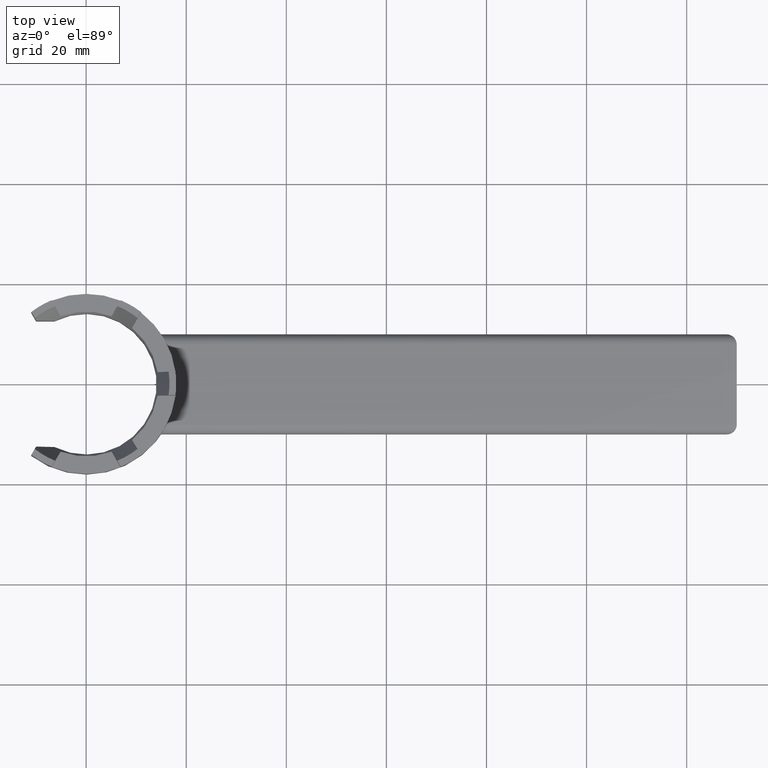
[diagram: clean part render]
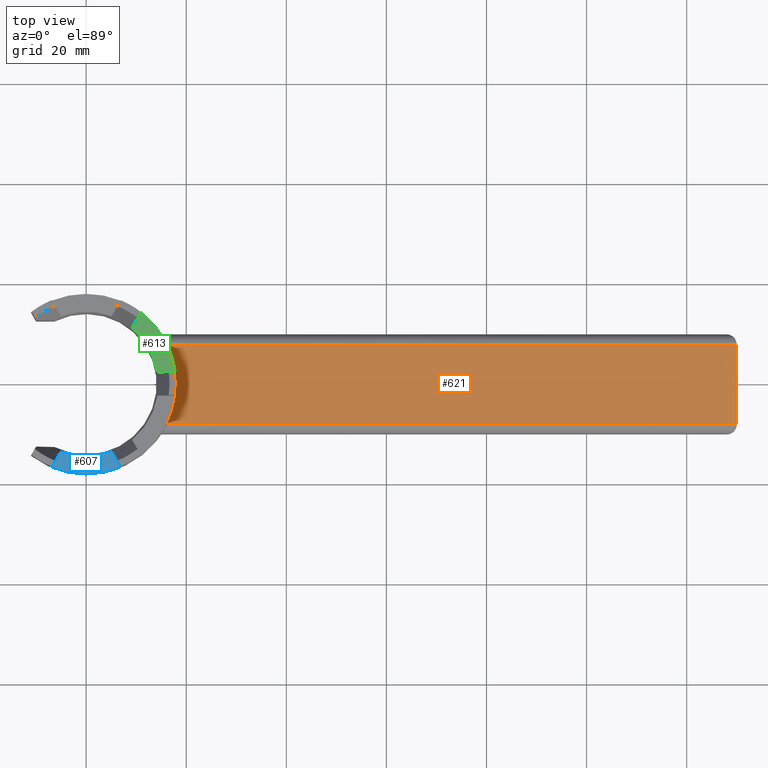
[diagram: same view with three faces highlighted in distinct colors, each labeled with its STEP entity id]
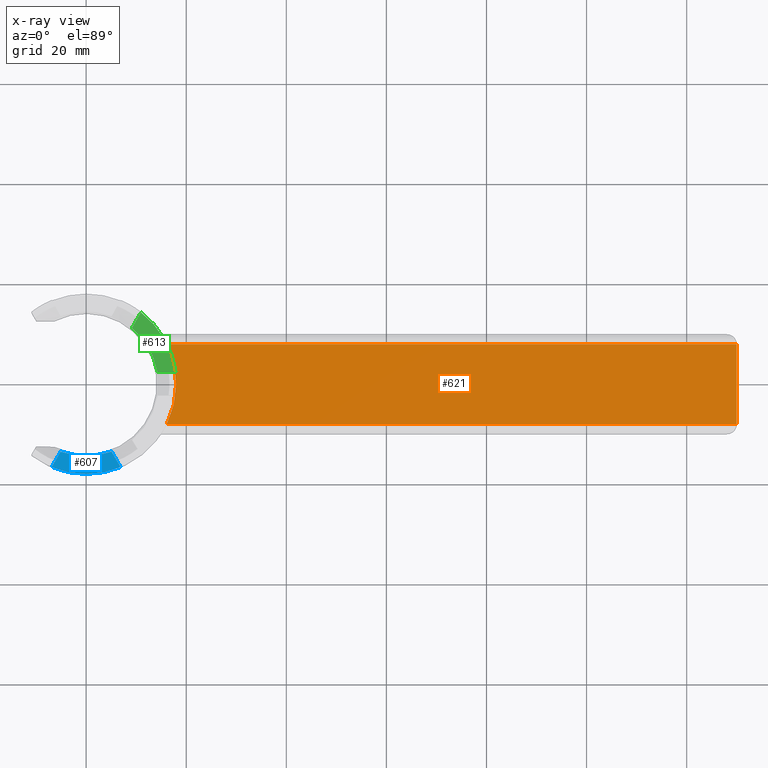
[diagram: x-ray of the same camera — body ghosted, the three highlighted faces saturated]
A machine part, top view with three faces highlighted in distinct colors.
The next image is the same camera in x-ray (body ghosted, the three faces saturated) — at least one of them is partly hidden behind the body in this view.
Their STEP definitions:

[orange] entity #621 — the highlighted planar face has unit normal (0, 0, 1).
#88=PLANE('',#1117);
#114=CIRCLE('',#1118,18.);
#141=VERTEX_POINT('',#784);
#142=VERTEX_POINT('',#786);
#165=VERTEX_POINT('',#908);
#192=VERTEX_POINT('',#1046);
#195=VECTOR('',#647,1.);
#196=VECTOR('',#671,1.);
#233=VECTOR('',#742,1.);
#239=LINE('',#785,#195);
#240=LINE('',#907,#196);
#277=LINE('',#1047,#233);
#285=EDGE_CURVE('',#142,#141,#239,.T.);
#309=EDGE_CURVE('',#165,#141,#240,.T.);
#355=EDGE_CURVE('',#165,#192,#277,.F.);
#358=EDGE_CURVE('',#142,#192,#114,.T.);
#479=ORIENTED_EDGE('',*,*,#309,.F.);
#480=ORIENTED_EDGE('',*,*,#355,.T.);
#481=ORIENTED_EDGE('',*,*,#358,.F.);
#482=ORIENTED_EDGE('',*,*,#285,.T.);
#559=EDGE_LOOP('',(#479,#480,#481,#482));
#590=FACE_BOUND('',#559,.T.);
#621=ADVANCED_FACE('',(#590),#88,.T.);
#647=DIRECTION('',(1.,1.20641408255495E-16,0.));
#671=DIRECTION('',(0.,-1.,0.));
#742=DIRECTION('',(1.,-1.20641408255495E-16,0.));
#752=DIRECTION('',(0.,0.,1.));
#753=DIRECTION('',(0.,0.,1.));
#754=DIRECTION('',(-18.,0.,0.));
#784=CARTESIAN_POINT('',(130.,-8.,4.));
#785=CARTESIAN_POINT('',(130.,-8.,4.));
#786=CARTESIAN_POINT('',(16.1245154965971,-8.00000000000002,4.));
#907=CARTESIAN_POINT('',(130.,5.,4.));
#908=CARTESIAN_POINT('',(130.,8.,4.));
#1046=CARTESIAN_POINT('',(16.1245154965971,8.,4.));
#1047=CARTESIAN_POINT('',(1.37074405272211E-15,8.,4.));
#1053=CARTESIAN_POINT('',(14.9666295470958,0.,4.));
#1054=CARTESIAN_POINT('',(0.,0.,4.));
#1117=AXIS2_PLACEMENT_3D('',#1053,#752,$);
#1118=AXIS2_PLACEMENT_3D('',#1054,#753,#754);

[blue] entity #607 — the highlighted planar face has unit normal (0, 0, 1).
#78=PLANE('',#1097);
#98=CIRCLE('',#1079,14.4661785944028);
#110=CIRCLE('',#1098,18.);
#149=VERTEX_POINT('',#858);
#150=VERTEX_POINT('',#860);
#180=VERTEX_POINT('',#952);
#181=VERTEX_POINT('',#954);
#215=VECTOR('',#704,0.999999999999999);
#216=VECTOR('',#707,1.);
#259=LINE('',#951,#215);
#260=LINE('',#955,#216);
#293=EDGE_CURVE('',#149,#150,#98,.F.);
#332=EDGE_CURVE('',#149,#180,#259,.T.);
#333=EDGE_CURVE('',#180,#181,#110,.T.);
#334=EDGE_CURVE('',#181,#150,#260,.T.);
#424=ORIENTED_EDGE('',*,*,#332,.T.);
#425=ORIENTED_EDGE('',*,*,#333,.T.);
#426=ORIENTED_EDGE('',*,*,#334,.T.);
#427=ORIENTED_EDGE('',*,*,#293,.F.);
#545=EDGE_LOOP('',(#424,#425,#426,#427));
#576=FACE_BOUND('',#545,.T.);
#607=ADVANCED_FACE('',(#576),#78,.T.);
#654=DIRECTION('',(0.,0.,-1.));
#655=DIRECTION('',(14.4661785944028,0.,0.));
#703=DIRECTION('',(0.,0.,1.));
#704=DIRECTION('',(-0.5,-0.866025403784438,0.));
#705=DIRECTION('',(0.,0.,1.));
#706=DIRECTION('',(-18.,0.,0.));
#707=DIRECTION('',(-0.5,0.866025403784439,0.));
#858=CARTESIAN_POINT('',(-5.10185338651488,-13.5366692782111,8.));
#859=CARTESIAN_POINT('',(0.,0.,8.));
#860=CARTESIAN_POINT('',(5.10185338651486,-13.5366692782111,8.00000000000001));
#950=CARTESIAN_POINT('',(0.,0.,8.));
#951=CARTESIAN_POINT('',(1.01757984944672,-2.9375,8.));
#952=CARTESIAN_POINT('',(-6.8878092576815,-16.6300355871476,8.));
#953=CARTESIAN_POINT('',(0.,0.,8.));
#954=CARTESIAN_POINT('',(6.88780925768151,-16.6300355871476,8.));
#955=CARTESIAN_POINT('',(-1.01757984944671,-2.9375,8.));
#1079=AXIS2_PLACEMENT_3D('',#859,#654,#655);
#1097=AXIS2_PLACEMENT_3D('',#950,#703,$);
#1098=AXIS2_PLACEMENT_3D('',#953,#705,#706);

[green] entity #613 — the highlighted planar face has unit normal (0, 0, 1).
#84=PLANE('',#1105);
#102=CIRCLE('',#1083,14.4661785944028);
#112=CIRCLE('',#1106,18.);
#157=VERTEX_POINT('',#882);
#158=VERTEX_POINT('',#884);
#187=VERTEX_POINT('',#978);
#188=VERTEX_POINT('',#980);
#226=VECTOR('',#725,1.);
#227=VECTOR('',#728,1.);
#270=LINE('',#977,#226);
#271=LINE('',#981,#227);
#301=EDGE_CURVE('',#157,#158,#102,.F.);
#345=EDGE_CURVE('',#157,#187,#270,.T.);
#346=EDGE_CURVE('',#187,#188,#112,.T.);
#347=EDGE_CURVE('',#188,#158,#271,.T.);
#448=ORIENTED_EDGE('',*,*,#345,.T.);
#449=ORIENTED_EDGE('',*,*,#346,.T.);
#450=ORIENTED_EDGE('',*,*,#347,.T.);
#451=ORIENTED_EDGE('',*,*,#301,.F.);
#551=EDGE_LOOP('',(#448,#449,#450,#451));
#582=FACE_BOUND('',#551,.T.);
#613=ADVANCED_FACE('',(#582),#84,.T.);
#662=DIRECTION('',(0.,0.,-1.));
#663=DIRECTION('',(14.4661785944028,0.,0.));
#724=DIRECTION('',(0.,0.,1.));
#725=DIRECTION('',(1.,-2.04631512212578E-15,0.));
#726=DIRECTION('',(0.,0.,1.));
#727=DIRECTION('',(-18.,0.,0.));
#728=DIRECTION('',(-0.500000000000001,-0.866025403784438,0.));
#882=CARTESIAN_POINT('',(14.2740261708167,2.34999999999998,7.99999999999998));
#883=CARTESIAN_POINT('',(0.,0.,8.));
#884=CARTESIAN_POINT('',(9.17217278430175,11.186669278211,8.00000000000001));
#976=CARTESIAN_POINT('',(0.,0.,8.));
#977=CARTESIAN_POINT('',(2.03515969889344,2.35,8.));
#978=CARTESIAN_POINT('',(17.8459379131499,2.34999999999997,8.));
#979=CARTESIAN_POINT('',(0.,0.,8.));
#980=CARTESIAN_POINT('',(10.9581286554684,14.2800355871476,8.));
#981=CARTESIAN_POINT('',(6.49664417718093,6.55251779357379,8.));
#1083=AXIS2_PLACEMENT_3D('',#883,#662,#663);
#1105=AXIS2_PLACEMENT_3D('',#976,#724,$);
#1106=AXIS2_PLACEMENT_3D('',#979,#726,#727);